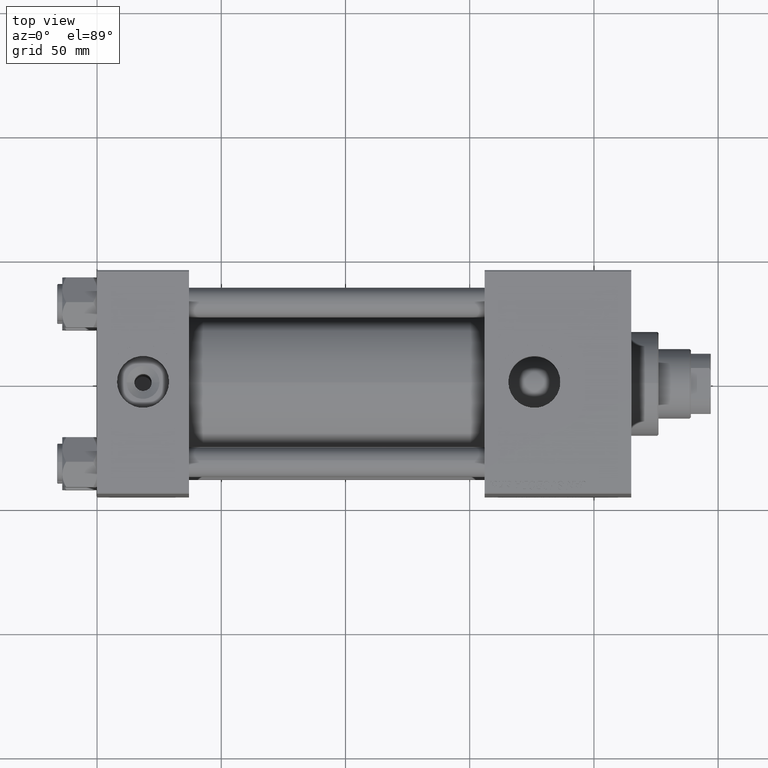
[diagram: clean part render]
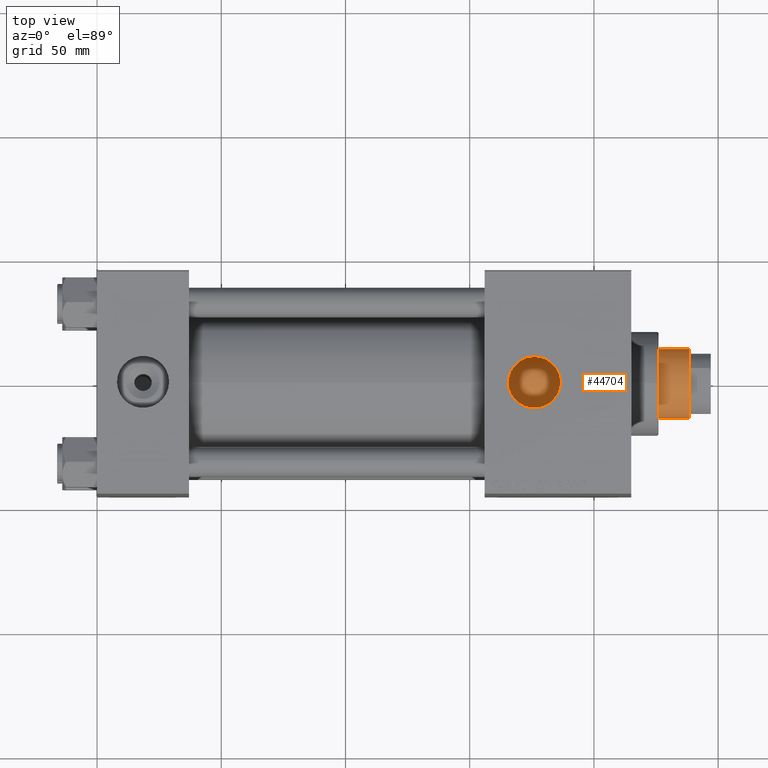
[diagram: same view with one face highlighted and labeled with its STEP entity id]
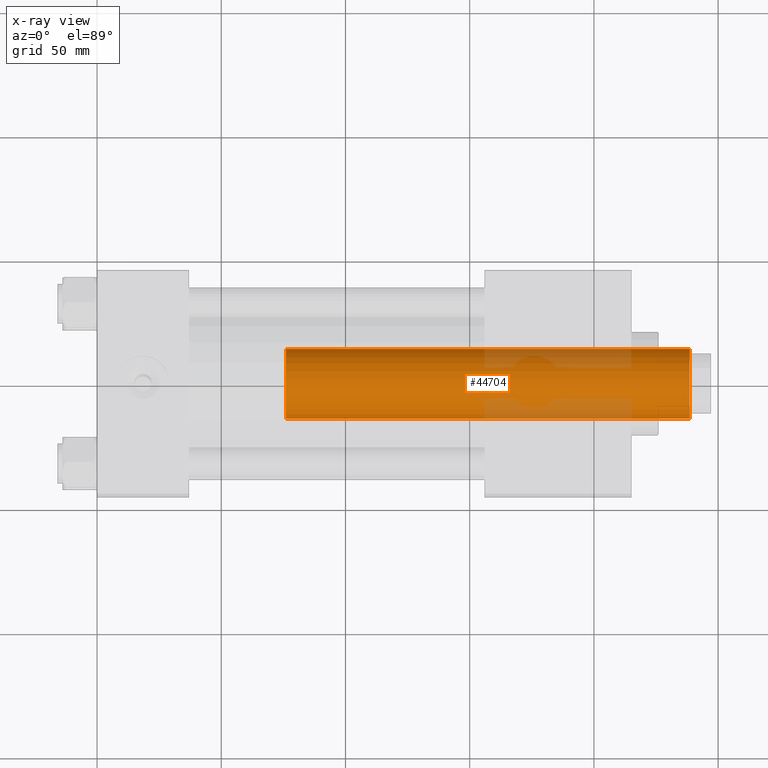
[diagram: x-ray of the same camera — body ghosted, the highlighted face saturated]
A machine part, top view. The second image highlights one B-rep face of the part: STEP entity #44704.
The next image is the same camera in x-ray: the body ghosted, the highlighted face saturated — about 18% of this face is hidden behind the body in this view.
In plain terms, the highlighted cylindrical surface (edge-blend (fillet) strip) has radius 14 mm, axis along (-1, 0, 0).
Its self-contained STEP definition (entity closure, byte-faithful):
#446 = ORIENTED_EDGE ( 'NONE', *, *, #13982, .T. ) ;
#757 = EDGE_CURVE ( 'NONE', #25550, #15460, #19019, .T. ) ;
#759 = ORIENTED_EDGE ( 'NONE', *, *, #757, .T. ) ;
#829 = AXIS2_PLACEMENT_3D ( 'NONE', #34211, #18563, #1616 ) ;
#1195 = EDGE_LOOP ( 'NONE', ( #13459, #446, #759, #43821 ) ) ;
#1616 = DIRECTION ( 'NONE',  ( -1.000000000000000000, 0.000000000000000000, 0.000000000000000000 ) ) ;
#5557 = VECTOR ( 'NONE', #27225, 1000.000000000000000 ) ;
#8734 = DIRECTION ( 'NONE',  ( 0.000000000000000000, 0.000000000000000000, -1.000000000000000000 ) ) ;
#9066 = EDGE_CURVE ( 'NONE', #11669, #10144, #29187, .T. ) ;
#9525 = VECTOR ( 'NONE', #13546, 1000.000000000000000 ) ;
#10144 = VERTEX_POINT ( 'NONE', #11660 ) ;
#11660 = CARTESIAN_POINT ( 'NONE',  ( 14.00000000000000178, 1.714505518806294835E-15, 39.00000000000000000 ) ) ;
#11669 = VERTEX_POINT ( 'NONE', #40072 ) ;
#12429 = DIRECTION ( 'NONE',  ( 1.000000000000000000, 0.000000000000000000, 0.000000000000000000 ) ) ;
#13097 = DIRECTION ( 'NONE',  ( 0.000000000000000000, 0.000000000000000000, 1.000000000000000000 ) ) ;
#13459 = ORIENTED_EDGE ( 'NONE', *, *, #9066, .F. ) ;
#13546 = DIRECTION ( 'NONE',  ( -0.000000000000000000, -0.000000000000000000, -1.000000000000000000 ) ) ;
#13982 = EDGE_CURVE ( 'NONE', #11669, #25550, #29870, .T. ) ;
#14841 = CYLINDRICAL_SURFACE ( 'NONE', #829, 14.00000000000000178 ) ;
#15460 = VERTEX_POINT ( 'NONE', #17124 ) ;
#15776 = CARTESIAN_POINT ( 'NONE',  ( 0.000000000000000000, 0.000000000000000000, 39.00000000000000000 ) ) ;
#17124 = CARTESIAN_POINT ( 'NONE',  ( -14.00000000000000178, 0.000000000000000000, 39.00000000000000000 ) ) ;
#18563 = DIRECTION ( 'NONE',  ( -0.000000000000000000, -0.000000000000000000, -1.000000000000000000 ) ) ;
#19019 = LINE ( 'NONE', #47415, #5557 ) ;
#19529 = CARTESIAN_POINT ( 'NONE',  ( -14.00000000000000178, 0.000000000000000000, 201.5000000000000284 ) ) ;
#21060 = DIRECTION ( 'NONE',  ( 1.000000000000000000, 0.000000000000000000, 0.000000000000000000 ) ) ;
#22633 = CIRCLE ( 'NONE', #52299, 14.00000000000000178 ) ;
#25550 = VERTEX_POINT ( 'NONE', #19529 ) ;
#27225 = DIRECTION ( 'NONE',  ( -0.000000000000000000, -0.000000000000000000, -1.000000000000000000 ) ) ;
#27335 = EDGE_CURVE ( 'NONE', #15460, #10144, #22633, .T. ) ;
#29187 = LINE ( 'NONE', #42211, #9525 ) ;
#29870 = CIRCLE ( 'NONE', #51077, 14.00000000000000178 ) ;
#32571 = CARTESIAN_POINT ( 'NONE',  ( 0.000000000000000000, 0.000000000000000000, 201.5000000000000284 ) ) ;
#34211 = CARTESIAN_POINT ( 'NONE',  ( 0.000000000000000000, 0.000000000000000000, 202.0000000000000000 ) ) ;
#40072 = CARTESIAN_POINT ( 'NONE',  ( 14.00000000000000178, 1.714505518806294835E-15, 201.5000000000000284 ) ) ;
#42211 = CARTESIAN_POINT ( 'NONE',  ( 14.00000000000000178, 1.714505518806294835E-15, 202.0000000000000000 ) ) ;
#42715 = FACE_OUTER_BOUND ( 'NONE', #1195, .T. ) ;
#43821 = ORIENTED_EDGE ( 'NONE', *, *, #27335, .T. ) ;
#44704 = ADVANCED_FACE ( 'NONE', ( #42715 ), #14841, .T. ) ;
#47415 = CARTESIAN_POINT ( 'NONE',  ( -14.00000000000000178, 0.000000000000000000, 202.0000000000000000 ) ) ;
#51077 = AXIS2_PLACEMENT_3D ( 'NONE', #32571, #8734, #12429 ) ;
#52299 = AXIS2_PLACEMENT_3D ( 'NONE', #15776, #13097, #21060 ) ;